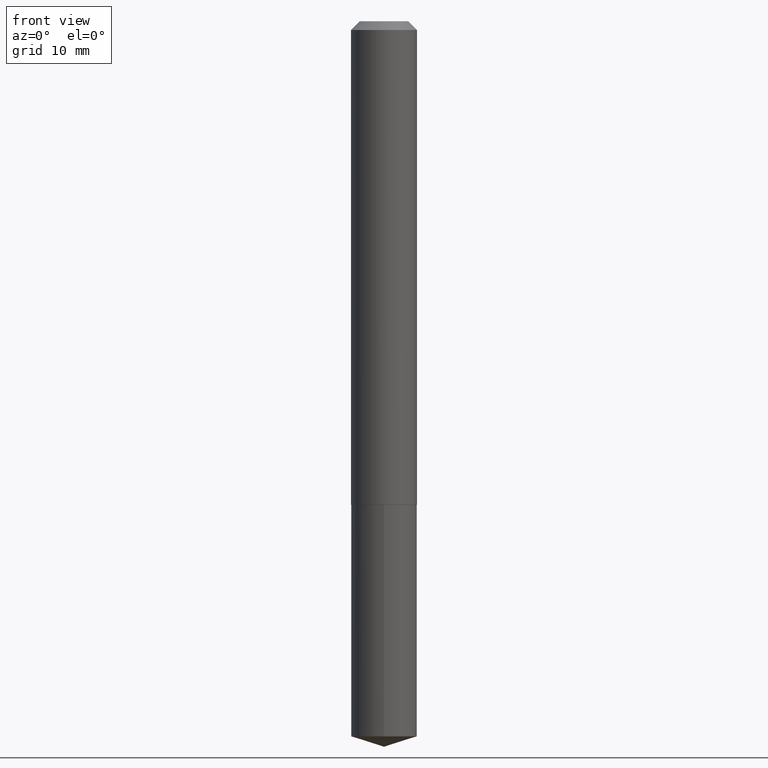
[diagram: clean part render]
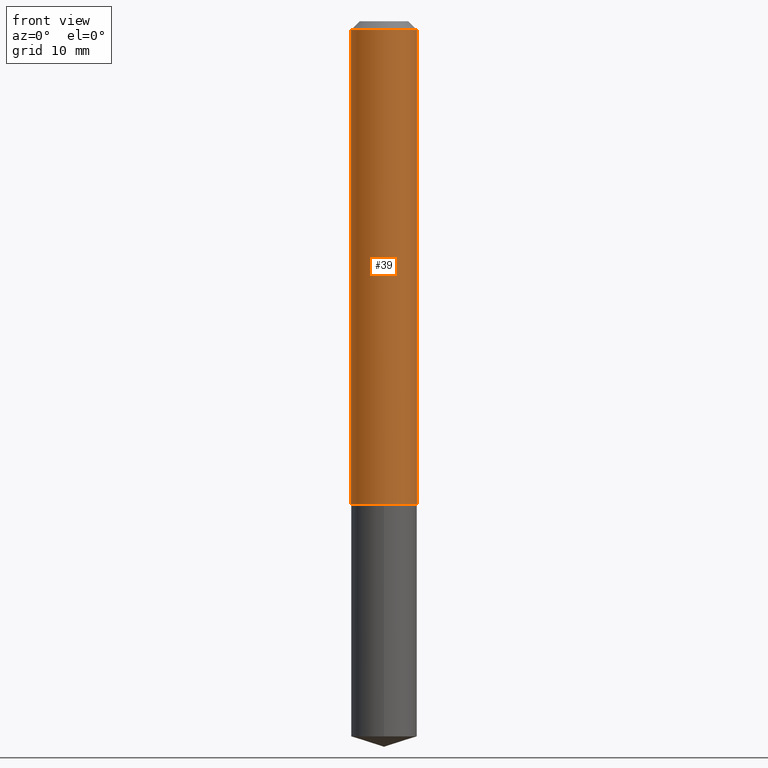
[diagram: same view with one face highlighted and labeled with its STEP entity id]
A machine part, front view. The second image highlights one B-rep face of the part: STEP entity #39.
In plain terms, the highlighted cylindrical surface (edge-blend (fillet) strip) has radius 2.9997 mm, axis along (-0, 0, 1).
Its self-contained STEP definition (entity closure, byte-faithful):
#3 = EDGE_CURVE ( 'NONE', #235, #177, #279, .T. ) ;
#23 = VECTOR ( 'NONE', #131, 39.37007874015748143 ) ;
#28 = DIRECTION ( 'NONE',  ( 1.000000000000000000, -6.982962677686266711E-15, 4.876176775795935793E-29 ) ) ;
#39 = ADVANCED_FACE ( 'NONE', ( #364 ), #309, .T. ) ;
#42 = EDGE_CURVE ( 'NONE', #177, #82, #207, .T. ) ;
#61 = EDGE_LOOP ( 'NONE', ( #122, #376, #308, #358 ) ) ;
#70 = DIRECTION ( 'NONE',  ( -2.445468806185136597E-29, 3.491481338843145583E-15, 1.000000000000000000 ) ) ;
#72 = AXIS2_PLACEMENT_3D ( 'NONE', #175, #275, #120 ) ;
#82 = VERTEX_POINT ( 'NONE', #338 ) ;
#95 = CARTESIAN_POINT ( 'NONE',  ( 0.1181000000000002187, -6.870886126709424325E-15, -1.731699999999999795 ) ) ;
#98 = DIRECTION ( 'NONE',  ( -2.445468806185136877E-29, 3.491481338843145188E-15, 1.000000000000000000 ) ) ;
#100 = CARTESIAN_POINT ( 'NONE',  ( -0.1180999999999999966, -2.238502542224082018E-15, -0.03125000000000021511 ) ) ;
#120 = DIRECTION ( 'NONE',  ( 1.000000000000000000, -6.982962677686267499E-15, 0.000000000000000000 ) ) ;
#122 = ORIENTED_EDGE ( 'NONE', *, *, #148, .F. ) ;
#123 = DIRECTION ( 'NONE',  ( -2.445468806185136597E-29, 3.491481338843145583E-15, 1.000000000000000000 ) ) ;
#125 = CARTESIAN_POINT ( 'NONE',  ( -0.1181000000000001077, 8.391509709326790846E-16, -5.809262341591049389E-30 ) ) ;
#131 = DIRECTION ( 'NONE',  ( -2.445468806185136877E-29, 3.491481338843145188E-15, 1.000000000000000000 ) ) ;
#148 = EDGE_CURVE ( 'NONE', #235, #208, #282, .T. ) ;
#150 = CIRCLE ( 'NONE', #292, 0.1180999999999999966 ) ;
#175 = CARTESIAN_POINT ( 'NONE',  ( 4.234818331670800246E-29, -6.046198234474674485E-15, -1.731699999999999795 ) ) ;
#177 = VERTEX_POINT ( 'NONE', #95 ) ;
#206 = EDGE_CURVE ( 'NONE', #208, #82, #150, .T. ) ;
#207 = LINE ( 'NONE', #330, #373 ) ;
#208 = VERTEX_POINT ( 'NONE', #100 ) ;
#215 = CARTESIAN_POINT ( 'NONE',  ( 7.642090019328603538E-31, -1.091087918388490390E-16, -0.03125000000000021511 ) ) ;
#235 = VERTEX_POINT ( 'NONE', #343 ) ;
#275 = DIRECTION ( 'NONE',  ( -2.445468806185136597E-29, 3.491481338843145583E-15, 1.000000000000000000 ) ) ;
#279 = CIRCLE ( 'NONE', #72, 0.1181000000000002187 ) ;
#280 = CARTESIAN_POINT ( 'NONE',  ( 0.000000000000000000, 0.000000000000000000, 0.000000000000000000 ) ) ;
#282 = LINE ( 'NONE', #125, #23 ) ;
#292 = AXIS2_PLACEMENT_3D ( 'NONE', #215, #70, #371 ) ;
#308 = ORIENTED_EDGE ( 'NONE', *, *, #42, .T. ) ;
#309 = CYLINDRICAL_SURFACE ( 'NONE', #310, 0.1181000000000001077 ) ;
#310 = AXIS2_PLACEMENT_3D ( 'NONE', #280, #123, #28 ) ;
#330 = CARTESIAN_POINT ( 'NONE',  ( 0.1181000000000001077, -8.246878922347488542E-16, 5.758764772215005345E-30 ) ) ;
#338 = CARTESIAN_POINT ( 'NONE',  ( 0.1180999999999999966, -9.337966840735971660E-16, -0.03125000000000021511 ) ) ;
#343 = CARTESIAN_POINT ( 'NONE',  ( -0.1181000000000002187, -5.207047263541994710E-15, -1.731699999999999795 ) ) ;
#358 = ORIENTED_EDGE ( 'NONE', *, *, #206, .F. ) ;
#364 = FACE_OUTER_BOUND ( 'NONE', #61, .T. ) ;
#371 = DIRECTION ( 'NONE',  ( 1.000000000000000000, -6.982962677686266711E-15, 0.000000000000000000 ) ) ;
#373 = VECTOR ( 'NONE', #98, 39.37007874015748143 ) ;
#376 = ORIENTED_EDGE ( 'NONE', *, *, #3, .T. ) ;